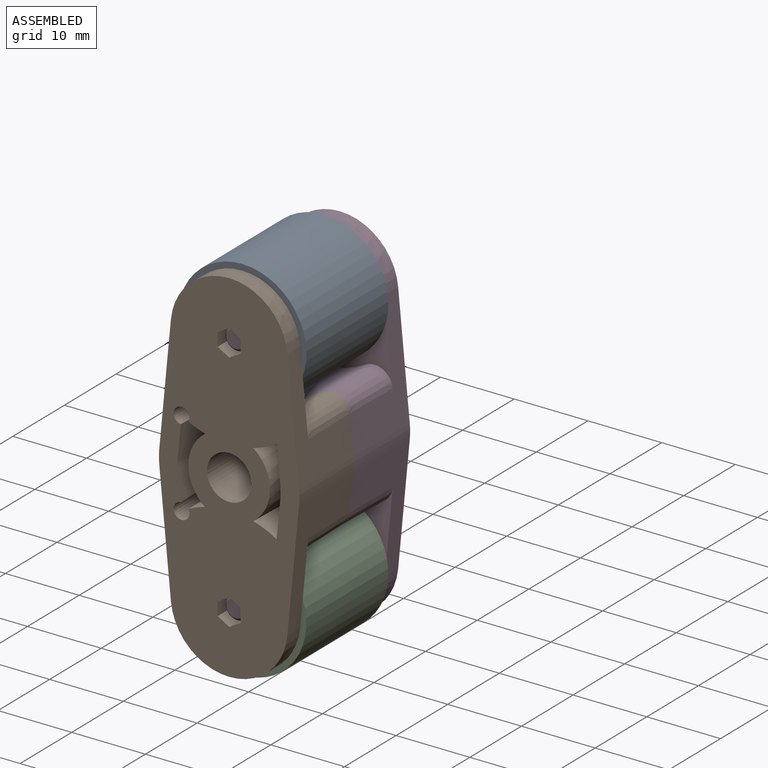
[diagram: assembled view]
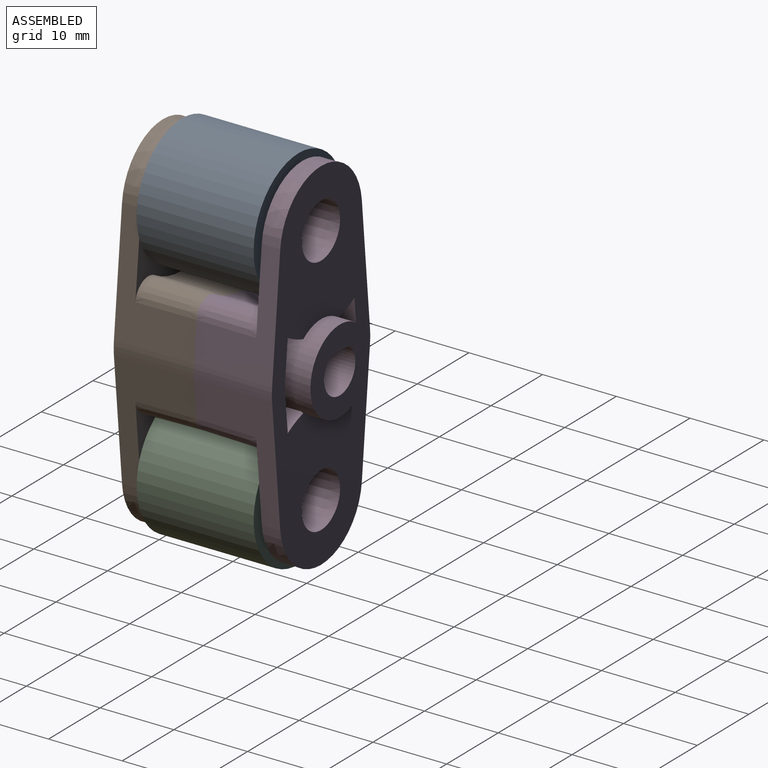
[diagram: assembled view, second angle]
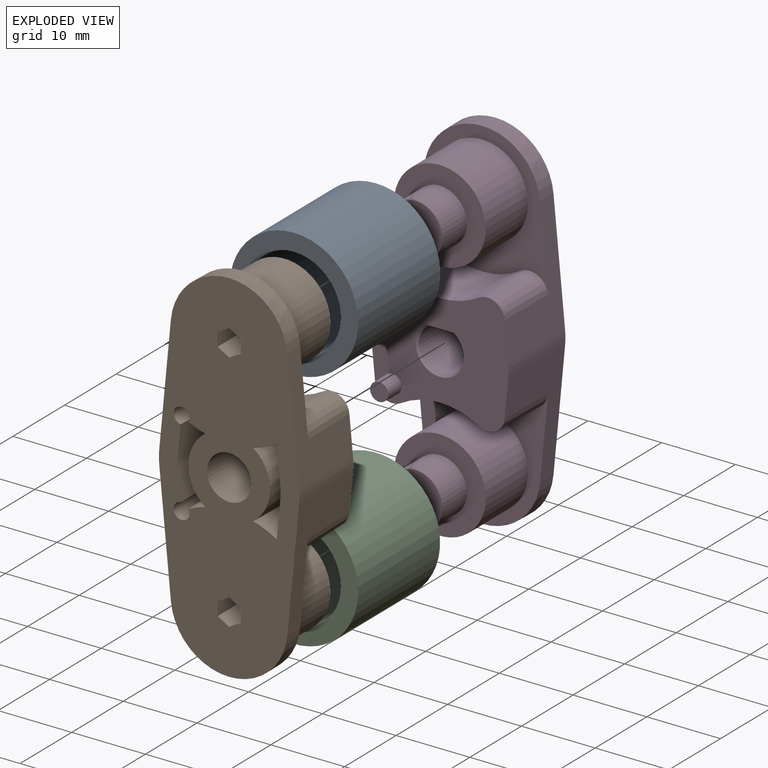
[diagram: exploded view]
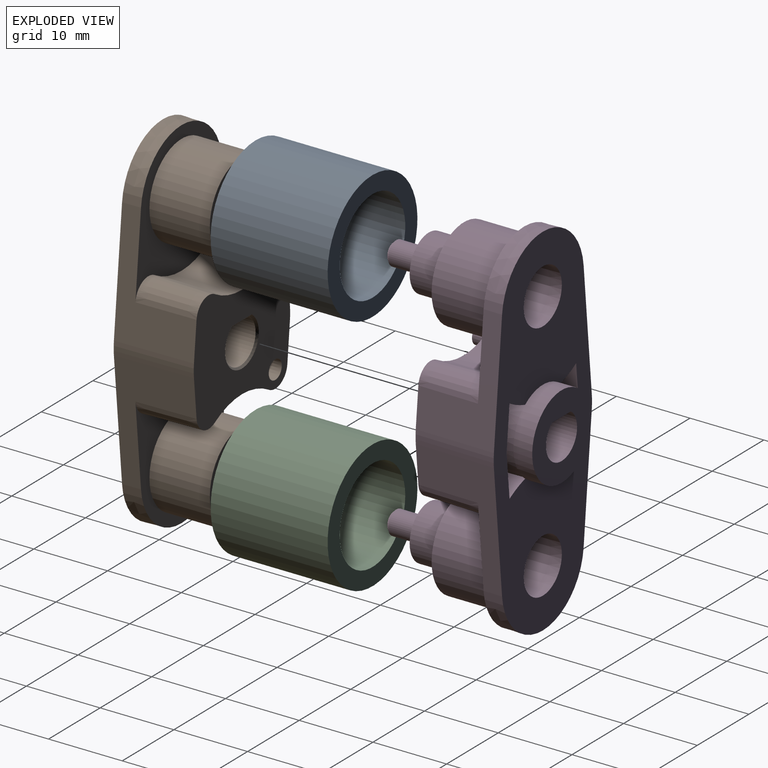
[diagram: exploded view, second angle]
ASSEMBLY  parts=4 mates=3
PART A: 4 faces, bbox 15.9x17.4x17.4 mm
  f0: plane 17.4x17.4mm, normal (1,0,0), area 111.1mm2, adj f2,f3
  f1: plane 17.4x17.4mm, normal (-1,0,0), area 111.1mm2, adj f2,f3
  f2: cylinder r=8.7mm len=17.4mm, axis (-1,0,0), area 867.7mm2, adj f0,f1
  f3: cylinder r=6.35mm len=15.88mm, axis (-1,0,0), area 633.4mm2, adj f0,f1
PART B: 73 faces, bbox 19.1x10.7x48.9 mm
  f0: plane 5.98x3.6mm, normal (0,0,-1), area 21.5mm2, adj f12,f70,f72
  f1: plane 8.2x4.12mm, normal (1,-0.02,0.1), area 33.2mm2, adj f4,f44,f45,f71
  f2: cone r=12.46mm half-angle=1deg, axis (0,1,0), area 18mm2, adj f4,f44,f46,f71
  f3: plane 18.35x17.96mm, normal (0,-1,0), area 242.7mm2, adj f4,f13,f14,f17,f57,f58,f59,f60
  f4: plane 19.05x16.78mm, normal (0,-1,0), area 197.8mm2, adj f1,f2,f3,f5,f10,f11,f12,f14
  f5: plane 18.35x17.96mm, normal (0,-1,0), area 242.7mm2, adj f4,f21,f22,f25,f30,f31,f32,f33
  f6: plane 7.37x7.37mm, normal (0,1,0), area 29.5mm2, adj f29,f49,f50,f51,f52,f53,f54
  f7: plane 12.45x12.45mm, normal (0,1,0), area 79mm2, adj f28,f29
  f8: plane 12.45x12.45mm, normal (0,1,0), area 79mm2, adj f20,f55
  f9: plane 18.68x16.4mm, normal (0,1,0), area 220.6mm2, adj f10,f11,f14,f15,f17,f18,f19,f22
  f10: cone r=9.53mm half-angle=1deg, axis (0,-1,0), area 19.5mm2, adj f4,f9,f17,f22
  f11: cone r=9.53mm half-angle=1deg, axis (0,-1,0), area 19.5mm2, adj f4,f9,f14,f25
  f12: cylinder r=3.01mm len=10.48mm, axis (0,1,0), area 174.8mm2, adj f0,f4,f69,f72
  f13: cone r=7.94mm half-angle=1deg, axis (0,-1,0), area 59.3mm2, adj f3,f14,f16,f17
  f14: plane 16.38x10.73mm, normal (-1,0.02,-0.1), area 84.4mm2, adj f3,f4,f9,f11,f13,f16,f19
  f15: cone r=9.92mm half-angle=1deg, axis (0,1,0), area 89.5mm2, adj f9,f16,f18,f19
  f16: plane 18.31x17.87mm, normal (0,1,0), area 128.4mm2, adj f13,f14,f15,f17,f18,f19,f20
  f17: plane 16.38x10.73mm, normal (1,0.02,-0.1), area 84.4mm2, adj f3,f4,f9,f10,f13,f16,f18
  f18: cone r=2.54mm half-angle=1deg, axis (0,-1,0), area 40.1mm2, adj f9,f15,f16,f17
  f19: cone r=2.54mm half-angle=1deg, axis (0,-1,0), area 40.1mm2, adj f9,f14,f15,f16
  f20: cylinder r=6.22mm len=12.45mm, axis (0,-1,0), area 320.3mm2, adj f8,f16
  f21: cone r=7.94mm half-angle=1deg, axis (0,-1,0), area 59.3mm2, adj f5,f22,f24,f25
  f22: plane 16.38x10.73mm, normal (1,0.02,0.1), area 84.4mm2, adj f4,f5,f9,f10,f21,f24,f27
  f23: cone r=9.92mm half-angle=1deg, axis (0,1,0), area 89.5mm2, adj f9,f24,f26,f27
  f24: plane 18.31x17.87mm, normal (0,1,0), area 128.4mm2, adj f21,f22,f23,f25,f26,f27,f28
  f25: plane 16.38x10.73mm, normal (-1,0.02,0.1), area 84.4mm2, adj f4,f5,f9,f11,f21,f24,f26
  f26: cone r=2.54mm half-angle=1deg, axis (0,-1,0), area 40.1mm2, adj f9,f23,f24,f25
  f27: cone r=2.54mm half-angle=1deg, axis (0,-1,0), area 40.1mm2, adj f9,f22,f23,f24
  f28: cylinder r=6.22mm len=12.45mm, axis (0,-1,0), area 320.3mm2, adj f7,f24
  f29: cylinder r=3.68mm len=7.37mm, axis (0,1,0), area 116.1mm2, adj f6,f7
  f30: plane 5.33x1.56mm, normal (0.5,0,-0.87), area 9.6mm2, adj f5,f31,f35,f53
  f31: plane 5.33x1.8mm, normal (1,0,0), area 9.6mm2, adj f5,f30,f32,f54
  f32: plane 5.33x1.56mm, normal (0.5,0,0.87), area 9.6mm2, adj f5,f31,f33,f52
  f33: plane 5.33x1.56mm, normal (-0.5,0,0.87), area 9.6mm2, adj f5,f32,f34,f50
  f34: plane 5.33x1.8mm, normal (-1,0,0), area 9.6mm2, adj f5,f33,f35,f49
  f35: plane 5.33x1.56mm, normal (-0.5,0,-0.87), area 9.6mm2, adj f5,f30,f34,f51
  f36: cone r=12.46mm half-angle=1deg, axis (0,1,0), area 26.6mm2, adj f4,f37,f40,f42
  f37: plane 8.19x5.19mm, normal (-1,-0.02,-0.1), area 41.7mm2, adj f4,f36,f39,f40
  f38: plane 8.19x5.19mm, normal (-1,-0.02,0.1), area 41.7mm2, adj f4,f39,f40,f41
  f39: cone r=6.99mm half-angle=1deg, axis (0,-1,0), area 10.9mm2, adj f4,f37,f38,f40
  f40: plane 11.22x3.26mm, normal (0,-1,0), area 17.3mm2, adj f36,f37,f38,f39,f41,f42
  f41: cone r=12.46mm half-angle=1deg, axis (0,1,0), area 26.6mm2, adj f4,f38,f40,f42
  f42: cone r=5.55mm half-angle=1deg, axis (0,1,0), area 84.3mm2, adj f4,f36,f40,f41
  f43: cone r=12.46mm half-angle=1deg, axis (0,1,0), area 18mm2, adj f4,f44,f46,f48
  f44: plane 10.29x3.26mm, normal (0,-1,0), area 16.2mm2, adj f1,f2,f43,f45,f46,f47,f48,f71
  f45: cone r=6.99mm half-angle=1deg, axis (0,-1,0), area 10.9mm2, adj f1,f4,f44,f47
  f46: cone r=5.55mm half-angle=1deg, axis (0,1,0), area 84.3mm2, adj f2,f4,f43,f44
  f47: plane 8.2x4.12mm, normal (1,-0.02,-0.1), area 33.2mm2, adj f4,f44,f45,f48
  f48: cone r=1.27mm half-angle=1deg, axis (0,1,0), area 69.4mm2, adj f4,f9,f43,f44,f47
  f49: plane 2.24x0.38mm, normal (-0.71,0.71,0), area 1.1mm2, adj f6,f34,f50,f51
  f50: plane 1.94x1.34mm, normal (-0.35,0.71,0.61), area 1.1mm2, adj f6,f33,f49,f52
  f51: plane 1.94x1.34mm, normal (-0.35,0.71,-0.61), area 1.1mm2, adj f6,f35,f49,f53
  f52: plane 1.94x1.34mm, normal (0.35,0.71,0.61), area 1.1mm2, adj f6,f32,f50,f54
  f53: plane 1.94x1.34mm, normal (0.35,0.71,-0.61), area 1.1mm2, adj f6,f30,f51,f54
  f54: plane 2.24x0.38mm, normal (0.71,0.71,0), area 1.1mm2, adj f6,f31,f52,f53
  f55: cylinder r=3.68mm len=7.37mm, axis (0,1,0), area 116.1mm2, adj f8,f56
  f56: plane 7.37x7.37mm, normal (0,1,0), area 29.5mm2, adj f55,f63,f64,f65,f66,f67,f68
  f57: plane 5.33x1.56mm, normal (0.5,0,0.87), area 9.6mm2, adj f3,f58,f62,f67
  f58: plane 5.33x1.56mm, normal (-0.5,0,0.87), area 9.6mm2, adj f3,f57,f59,f65
  f59: plane 5.33x1.8mm, normal (-1,0,0), area 9.6mm2, adj f3,f58,f60,f63
  f60: plane 5.33x1.56mm, normal (-0.5,0,-0.87), area 9.6mm2, adj f3,f59,f61,f64
  f61: plane 5.33x1.56mm, normal (0.5,0,-0.87), area 9.6mm2, adj f3,f60,f62,f66
  f62: plane 5.33x1.8mm, normal (1,0,0), area 9.6mm2, adj f3,f57,f61,f68
  f63: plane 2.24x0.38mm, normal (-0.71,0.71,0), area 1.1mm2, adj f56,f59,f64,f65
  f64: plane 1.94x1.34mm, normal (-0.35,0.71,-0.61), area 1.1mm2, adj f56,f60,f63,f66
  f65: plane 1.94x1.34mm, normal (-0.35,0.71,0.61), area 1.1mm2, adj f56,f58,f63,f67
  f66: plane 1.94x1.34mm, normal (0.35,0.71,-0.61), area 1.1mm2, adj f56,f61,f64,f68
  f67: plane 1.94x1.34mm, normal (0.35,0.71,0.61), area 1.1mm2, adj f56,f57,f65,f68
  f68: plane 2.24x0.38mm, normal (0.71,0.71,0), area 1.1mm2, adj f56,f62,f66,f67
  f69: cone r=3.01mm half-angle=45deg, axis (0,1,0), area 5.7mm2, adj f9,f12,f70
  f70: plane 3.77x0.26mm, normal (0,0.71,-0.71), area 1.3mm2, adj f0,f9,f69
  f71: cone r=1.27mm half-angle=1deg, axis (0,1,0), area 69.4mm2, adj f1,f2,f4,f9,f44
  f72: plane 3.6x0.6mm, normal (0,-1,0), area 1.5mm2, adj f0,f12
PART C: same geometry as A
PART D: 66 faces, bbox 19.1x22.8x48.9 mm
  f0: plane 48.9x19.05mm, normal (0,1,0), area 550.6mm2, adj f4,f5,f6,f7,f8,f9,f20,f21
  f1: plane 12.45x12.45mm, normal (0,-1,0), area 79mm2, adj f11,f24
  f2: plane 12.45x12.45mm, normal (0,-1,0), area 79mm2, adj f13,f28
  f3: plane 18.68x16.4mm, normal (0,-1,0), area 220.6mm2, adj f4,f5,f6,f7,f8,f9,f10,f12
  f4: cone r=9.53mm half-angle=1deg, axis (0,1,0), area 19.5mm2, adj f0,f3,f7,f8
  f5: cone r=9.53mm half-angle=1deg, axis (0,1,0), area 19.5mm2, adj f0,f3,f6,f9
  f6: plane 16.38x10.73mm, normal (-1,-0.02,0.1), area 84.4mm2, adj f0,f3,f5,f17,f21,f22
  f7: plane 16.38x10.73mm, normal (1,-0.02,0.1), area 84.4mm2, adj f0,f3,f4,f16,f21,f22
  f8: plane 16.38x10.73mm, normal (1,-0.02,-0.1), area 84.4mm2, adj f0,f3,f4,f15,f20,f23
  f9: plane 16.38x10.73mm, normal (-1,-0.02,-0.1), area 84.4mm2, adj f0,f3,f5,f14,f20,f23
  f10: cone r=9.92mm half-angle=1deg, axis (0,-1,0), area 89.5mm2, adj f3,f16,f17,f22
  f11: cylinder r=6.22mm len=12.45mm, axis (0,-1,0), area 320.3mm2, adj f1,f22
  f12: cone r=9.92mm half-angle=1deg, axis (0,-1,0), area 89.5mm2, adj f3,f14,f15,f23
  f13: cylinder r=6.22mm len=12.45mm, axis (0,-1,0), area 320.3mm2, adj f2,f23
  f14: cone r=2.54mm half-angle=1deg, axis (0,1,0), area 40.1mm2, adj f3,f9,f12,f23
  f15: cone r=2.54mm half-angle=1deg, axis (0,1,0), area 40.1mm2, adj f3,f8,f12,f23
  f16: cone r=2.54mm half-angle=1deg, axis (0,1,0), area 40.1mm2, adj f3,f7,f10,f22
  f17: cone r=2.54mm half-angle=1deg, axis (0,1,0), area 40.1mm2, adj f3,f6,f10,f22
  f18: plane 13.02x3.6mm, normal (0,0,-1), area 46.9mm2, adj f19,f59,f62
  f19: cylinder r=3.01mm len=13.02mm, axis (0,1,0), area 195.6mm2, adj f18,f58,f62
  f20: cone r=7.94mm half-angle=1deg, axis (0,1,0), area 59.3mm2, adj f0,f8,f9,f23
  f21: cone r=7.94mm half-angle=1deg, axis (0,1,0), area 59.3mm2, adj f0,f6,f7,f22
  f22: plane 18.31x17.87mm, normal (0,-1,0), area 128.4mm2, adj f6,f7,f10,f11,f16,f17,f21
  f23: plane 18.31x17.87mm, normal (0,-1,0), area 128.4mm2, adj f8,f9,f12,f13,f14,f15,f20
  f24: cylinder r=3.68mm len=7.37mm, axis (0,1,0), area 110.2mm2, adj f1,f25
  f25: plane 7.37x7.37mm, normal (0,-1,0), area 34.7mm2, adj f24,f52
  f26: cone r=1.27mm half-angle=1deg, axis (0,1,0), area 19.9mm2, adj f3,f27
  f27: plane 2.45x2.45mm, normal (0,-1,0), area 4.7mm2, adj f26
  f28: cylinder r=3.68mm len=7.37mm, axis (0,1,0), area 110.2mm2, adj f2,f29
  f29: plane 7.37x7.37mm, normal (0,-1,0), area 34.7mm2, adj f28,f55
  f30: cone r=5.55mm half-angle=1deg, axis (0,-1,0), area 84.3mm2, adj f31,f35,f36,f60
  f31: cone r=12.46mm half-angle=1deg, axis (0,-1,0), area 26.6mm2, adj f0,f30,f32,f35,f60
  f32: plane 8.19x5.19mm, normal (-1,0.02,0.1), area 41.7mm2, adj f0,f31,f34,f35
  f33: plane 8.19x5.19mm, normal (-1,0.02,-0.1), area 41.7mm2, adj f0,f34,f35,f36
  f34: cone r=6.99mm half-angle=1deg, axis (0,1,0), area 10.9mm2, adj f0,f32,f33,f35
  f35: plane 11.22x3.26mm, normal (0,1,0), area 17.3mm2, adj f30,f31,f32,f33,f34,f36
  f36: cone r=12.46mm half-angle=1deg, axis (0,-1,0), area 26.6mm2, adj f0,f30,f33,f35,f60
  f37: cone r=12.46mm half-angle=1deg, axis (0,-1,0), area 26.6mm2, adj f0,f39,f41,f43,f61
  f38: plane 8.19x5.19mm, normal (1,0.02,0.1), area 41.7mm2, adj f0,f40,f41,f42
  f39: plane 8.19x5.19mm, normal (1,0.02,-0.1), area 41.7mm2, adj f0,f37,f40,f41
  f40: cone r=6.99mm half-angle=1deg, axis (0,1,0), area 10.9mm2, adj f0,f38,f39,f41
  f41: plane 11.22x3.26mm, normal (0,1,0), area 17.3mm2, adj f37,f38,f39,f40,f42,f43
  f42: cone r=12.46mm half-angle=1deg, axis (0,-1,0), area 26.6mm2, adj f0,f38,f41,f43,f61
  f43: cone r=5.55mm half-angle=1deg, axis (0,-1,0), area 84.3mm2, adj f37,f41,f42,f61
  f44: plane 1.83x1.83mm, normal (0,1,0), area 2.6mm2, adj f45
  f45: cone r=1.14mm half-angle=1deg, axis (0,1,0), area 28.7mm2, adj f44,f47
  f46: cone r=3.68mm half-angle=1deg, axis (0,1,0), area 185.9mm2, adj f0,f47
  f47: plane 7.08x7.08mm, normal (0,1,0), area 36.2mm2, adj f45,f46
  f48: plane 7.08x7.08mm, normal (0,1,0), area 36.2mm2, adj f49,f50
  f49: cone r=3.68mm half-angle=1deg, axis (0,1,0), area 185.9mm2, adj f0,f48
  f50: cone r=1.14mm half-angle=1deg, axis (0,1,0), area 28.7mm2, adj f48,f51
  f51: plane 1.83x1.83mm, normal (0,1,0), area 2.6mm2, adj f50
  f52: cylinder r=1.59mm len=4.38mm, axis (0,1,0), area 43.7mm2, adj f25,f54
  f53: plane 2.41x2.41mm, normal (0,-1,0), area 4.6mm2, adj f54
  f54: cone r=1.21mm half-angle=45deg, axis (0,1,0), area 4.7mm2, adj f52,f53
  f55: cylinder r=1.59mm len=4.38mm, axis (0,1,0), area 43.7mm2, adj f29,f57
  f56: plane 2.41x2.41mm, normal (0,-1,0), area 4.6mm2, adj f57
  f57: cone r=1.21mm half-angle=45deg, axis (0,1,0), area 4.7mm2, adj f55,f56
  f58: cone r=3.26mm half-angle=45deg, axis (0,-1,0), area 5.7mm2, adj f3,f19,f59
  f59: plane 3.77x0.26mm, normal (0,-0.71,-0.71), area 1.3mm2, adj f3,f18,f58
  f60: plane 9.06x2.42mm, normal (0,-1,0), area 1.5mm2, adj f30,f31,f36,f63
  f61: plane 9.06x2.42mm, normal (0,-1,0), area 1.5mm2, adj f37,f42,f43,f63
  f62: plane 11.38x11.38mm, normal (0,1,0), area 74.8mm2, adj f18,f19,f63
  f63: cylinder r=5.69mm len=11.38mm, axis (0,-1,0), area 90.8mm2, adj f0,f60,f61,f62
  f64: cone r=1.27mm half-angle=1deg, axis (0,1,0), area 19.9mm2, adj f3,f65
  f65: plane 2.45x2.45mm, normal (0,-1,0), area 4.7mm2, adj f64
PLACE A rot(axis=(0.58,-0.58,-0.58),120deg) t=(-2.01,-10.43,37.46)mm
PLACE B rot(axis=(0.14,0.67,-0.73),0deg) t=(-2.01,-10.18,20.95)mm
PLACE C rot(axis=(0.71,-0.71,0),180deg) t=(-2.01,-10.43,4.44)mm
PLACE D rot(axis=(0.14,0.67,-0.73),0deg) t=(-2.01,-10.18,20.95)mm
MATE fastened D.f10 <-> B.f21  axis (0,-1,0) through (-2.01,-10.18,37.46)mm
MATE fastened A.f2 <-> B.f21  axis (0,-1,0) through (-2.01,-18.37,37.46)mm
MATE fastened C.f2 <-> B.f2  axis (0,-1,0) through (-2.01,-18.37,4.44)mm
